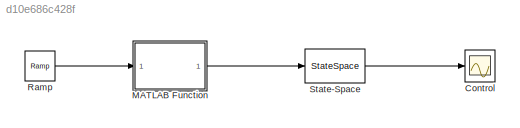
MODEL slx_d10e686c428f
KIND model
CONFIG AbsTol = auto
CONFIG FixedStep = auto
CONFIG MaxStep = auto
CONFIG MinStep = auto
CONFIG RelTol = 1e-3
CONFIG SampleTimeConstraint = Unconstrained
CONFIG Solver = ode45
CONFIG SolverMode = Auto
CONFIG SolverName = ode45
CONFIG StartTime = 0.0
CONFIG StopTime = 10.0
BLOCK [Scope] Control
  Floating = off
  NumInputPorts = 1
  Ports = [1]
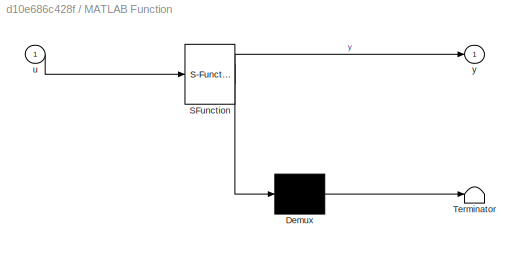
BLOCK [SubSystem] MATLAB Function
  ErrorFcn = Stateflow.Translate.translate
  PermitHierarchicalResolution = ExplicitOnly
  Ports = [1, 1]
  RequestExecContextInheritance = off
  SFBlockType = MATLAB Function
  TreatAsAtomicUnit = on
BLOCK [Demux] MATLAB Function/ Demux 
  Outputs = 1
  Ports = [1, 1]
BLOCK [S-Function] MATLAB Function/ SFunction 
  EnableBusSupport = on
  FunctionName = sf_sfun
  PortCounts = [1 2]
  Ports = [1, 2]
  Tag = Stateflow S-Function check_control 2
BLOCK [Terminator] MATLAB Function/ Terminator 
BLOCK [Inport] MATLAB Function/u
  IconDisplay = Port number
BLOCK [Outport] MATLAB Function/y
  IconDisplay = Port number
BLOCK [Reference] Ramp  REF=simulink/Sources/Ramp
  Ports = [0, 1]
  SourceBlock = simulink/Sources/Ramp
  SourceType = Ramp
  VectorParams1D = on
  X0 = 0
  slope = 1
  start = 0
BLOCK [StateSpace] State-Space
  A = A
  B = B
  C = C
  D = D
  Ports = [1, 1]
  X0 = [1,0]
LINE MATLAB Function:1 -> State-Space:1
LINE Ramp:1 -> MATLAB Function:1
LINE State-Space:1 -> Control:1
CHART MATLAB Function states=1 transitions=1
  STATE_LABEL 'eML_blk_kernel()'
  STATE_LABEL 'SCRIPT:\nfunction y = control_law(u)\nU =  (1071925570109499860*cos(399^(1/2)*(u/20 - 1/2))*exp(u/20 + 1/2) + 92415637195996507*cos(399^(1/2)*(u/20 + 1/2))*exp(u/20 + 1/2) - 1164341207305496367*cos(399^(1/2)*(u/20 - 1/2))*exp(u/20 + 3/2) + 95333785585233340*399^(1/2)*exp(u/20 + 1/2)*sin(399^(1/2)*(u/20 - 1/2)) + 2918148389236833*399^(1/2)*exp(u/20 + 1/2)*sin(399^(1/2)*(u/20 + 1/2)) - 982519339744701...<+643ch>'
